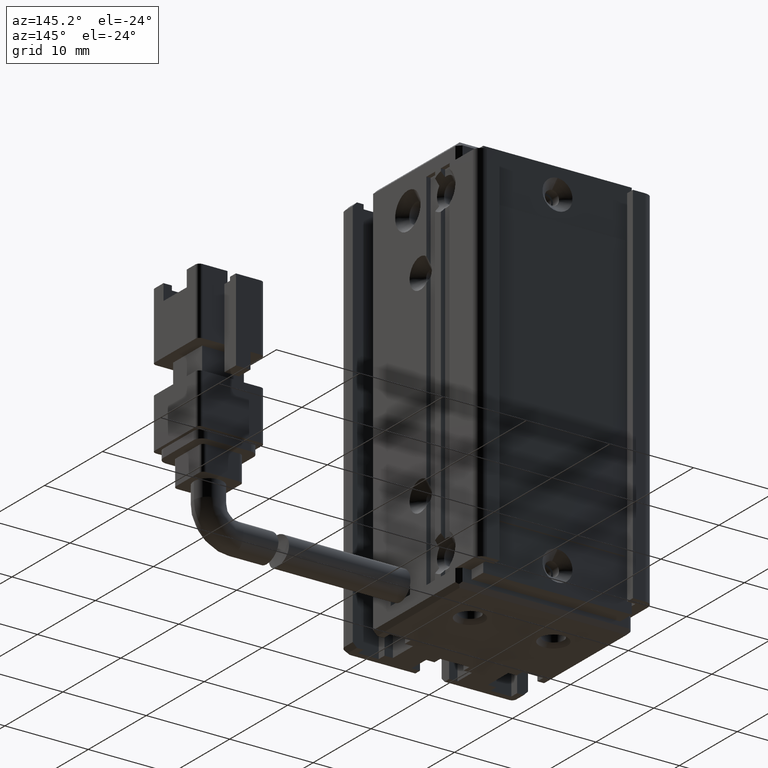
[diagram: clean part render]
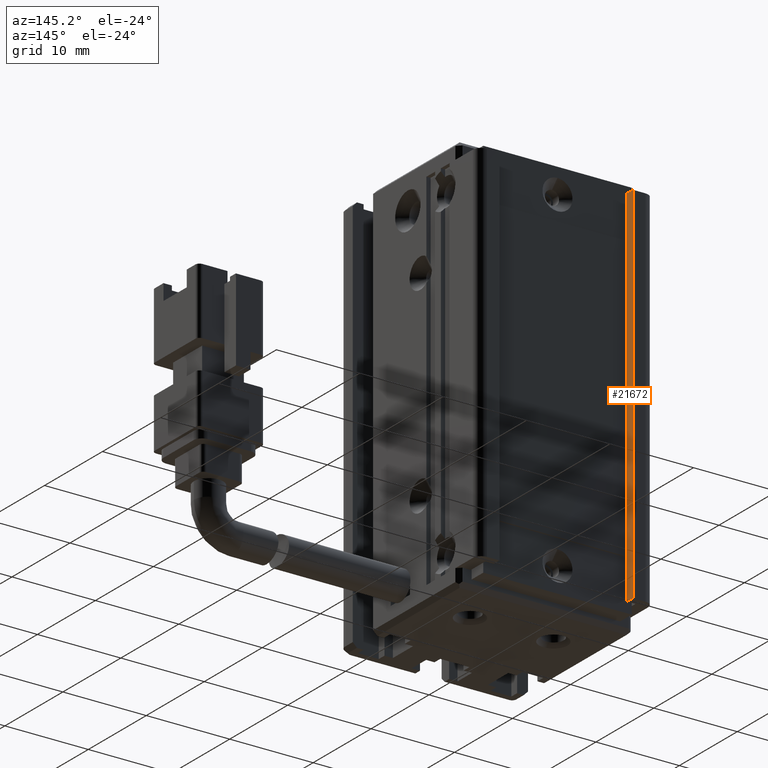
[diagram: same view with one face highlighted and labeled with its STEP entity id]
A machine part, auxiliary view. The second image highlights one B-rep face of the part: STEP entity #21672.
In plain terms, the highlighted planar face has unit normal (-1, 0, 0).
Its self-contained STEP definition (entity closure, byte-faithful):
#424 = FACE_OUTER_BOUND ( 'NONE', #21427, .T. ) ;
#1137 = CARTESIAN_POINT ( 'NONE',  ( 32.92537974683542500, 34.99073232304837700, -91.00000000000000000 ) ) ;
#1624 = LINE ( 'NONE', #1137, #26833 ) ;
#1950 = CARTESIAN_POINT ( 'NONE',  ( 32.92537974683542500, 33.99073232304837000, -137.0000000000000000 ) ) ;
#3369 = EDGE_CURVE ( 'NONE', #21293, #19916, #27848, .T. ) ;
#4023 = CARTESIAN_POINT ( 'NONE',  ( 32.92537974683542500, 33.99073232304837000, -91.00000000000000000 ) ) ;
#4368 = DIRECTION ( 'NONE',  ( -0.0000000000000000000, -0.0000000000000000000, -1.000000000000000000 ) ) ;
#6103 = ORIENTED_EDGE ( 'NONE', *, *, #37465, .F. ) ;
#6489 = LINE ( 'NONE', #4023, #24698 ) ;
#7002 = DIRECTION ( 'NONE',  ( -0.0000000000000000000, 0.0000000000000000000, 1.000000000000000000 ) ) ;
#7415 = EDGE_CURVE ( 'NONE', #24801, #36910, #8620, .T. ) ;
#8620 = LINE ( 'NONE', #19220, #37195 ) ;
#8905 = CARTESIAN_POINT ( 'NONE',  ( 32.92537974683542500, 34.99073232304837700, -93.00000000000000000 ) ) ;
#11144 = CARTESIAN_POINT ( 'NONE',  ( 32.92537974683542500, 7.083797468354437600, -93.00000000000000000 ) ) ;
#15314 = ORIENTED_EDGE ( 'NONE', *, *, #7415, .F. ) ;
#17409 = EDGE_CURVE ( 'NONE', #19916, #24801, #1624, .T. ) ;
#17908 = CARTESIAN_POINT ( 'NONE',  ( 32.92537974683542500, 34.99073232304837700, -137.0000000000000000 ) ) ;
#18626 = PLANE ( 'NONE',  #18777 ) ;
#18777 = AXIS2_PLACEMENT_3D ( 'NONE', #24618, #30925, #21780 ) ;
#19220 = CARTESIAN_POINT ( 'NONE',  ( 32.92537974683542500, 7.083797468354437600, -137.0000000000000000 ) ) ;
#19916 = VERTEX_POINT ( 'NONE', #8905 ) ;
#21293 = VERTEX_POINT ( 'NONE', #28458 ) ;
#21427 = EDGE_LOOP ( 'NONE', ( #27879, #6103, #15314, #35177 ) ) ;
#21672 = ADVANCED_FACE ( 'NONE', ( #424 ), #18626, .F. ) ;
#21780 = DIRECTION ( 'NONE',  ( 0.0000000000000000000, 0.0000000000000000000, 1.000000000000000000 ) ) ;
#24618 = CARTESIAN_POINT ( 'NONE',  ( 32.92537974683542500, 7.083797468354437600, -91.00000000000000000 ) ) ;
#24698 = VECTOR ( 'NONE', #7002, 1000.000000000000000 ) ;
#24801 = VERTEX_POINT ( 'NONE', #17908 ) ;
#26833 = VECTOR ( 'NONE', #4368, 1000.000000000000000 ) ;
#27848 = LINE ( 'NONE', #11144, #32065 ) ;
#27879 = ORIENTED_EDGE ( 'NONE', *, *, #3369, .F. ) ;
#28458 = CARTESIAN_POINT ( 'NONE',  ( 32.92537974683542500, 33.99073232304837000, -93.00000000000000000 ) ) ;
#30925 = DIRECTION ( 'NONE',  ( -1.000000000000000000, 0.0000000000000000000, 0.0000000000000000000 ) ) ;
#32065 = VECTOR ( 'NONE', #38550, 1000.000000000000000 ) ;
#35177 = ORIENTED_EDGE ( 'NONE', *, *, #17409, .F. ) ;
#36813 = DIRECTION ( 'NONE',  ( -0.0000000000000000000, -1.000000000000000000, 0.0000000000000000000 ) ) ;
#36910 = VERTEX_POINT ( 'NONE', #1950 ) ;
#37195 = VECTOR ( 'NONE', #36813, 1000.000000000000000 ) ;
#37465 = EDGE_CURVE ( 'NONE', #36910, #21293, #6489, .T. ) ;
#38550 = DIRECTION ( 'NONE',  ( 0.0000000000000000000, 1.000000000000000000, -0.0000000000000000000 ) ) ;